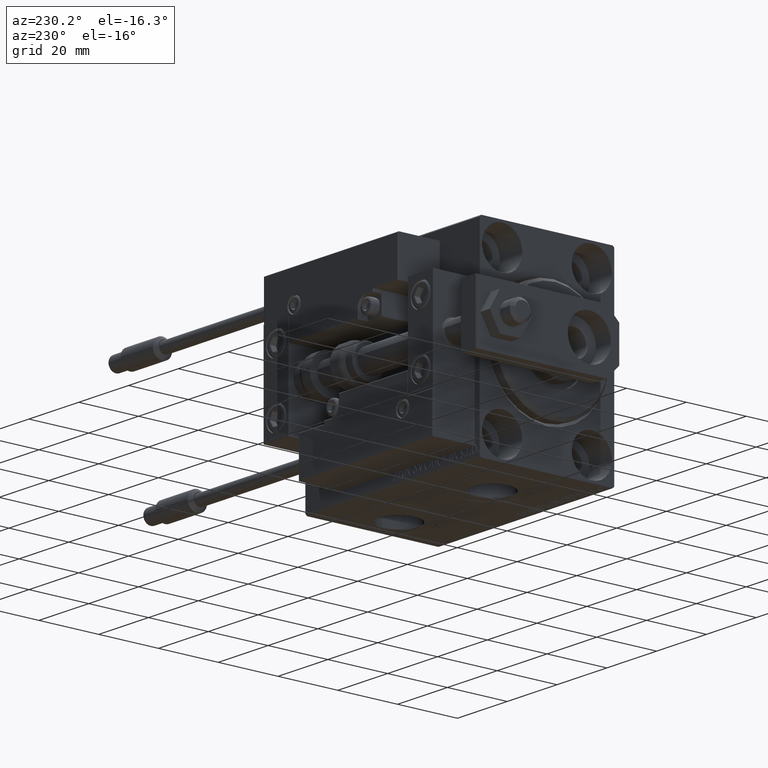
[diagram: clean part render]
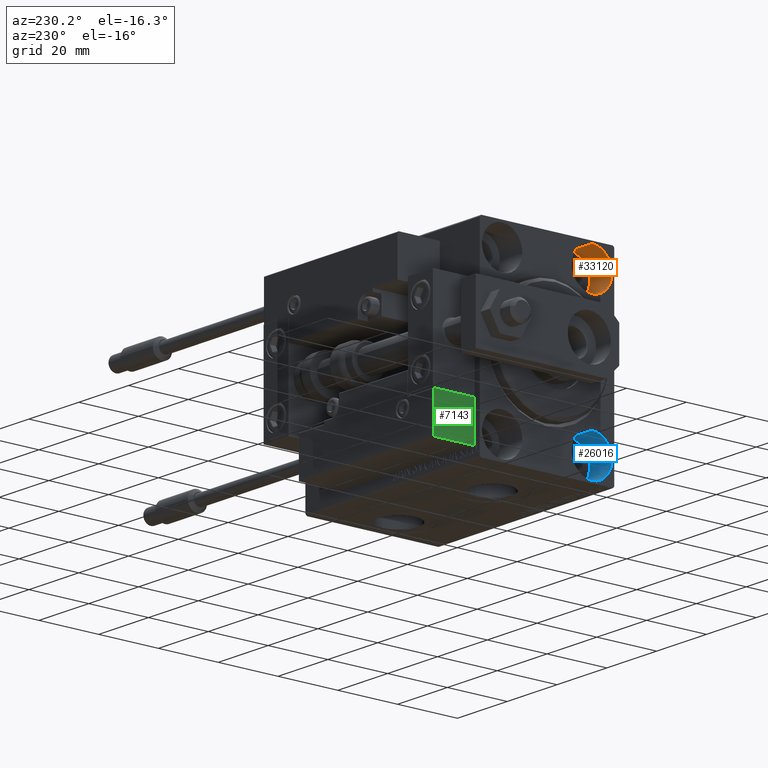
[diagram: same view with three faces highlighted in distinct colors, each labeled with its STEP entity id]
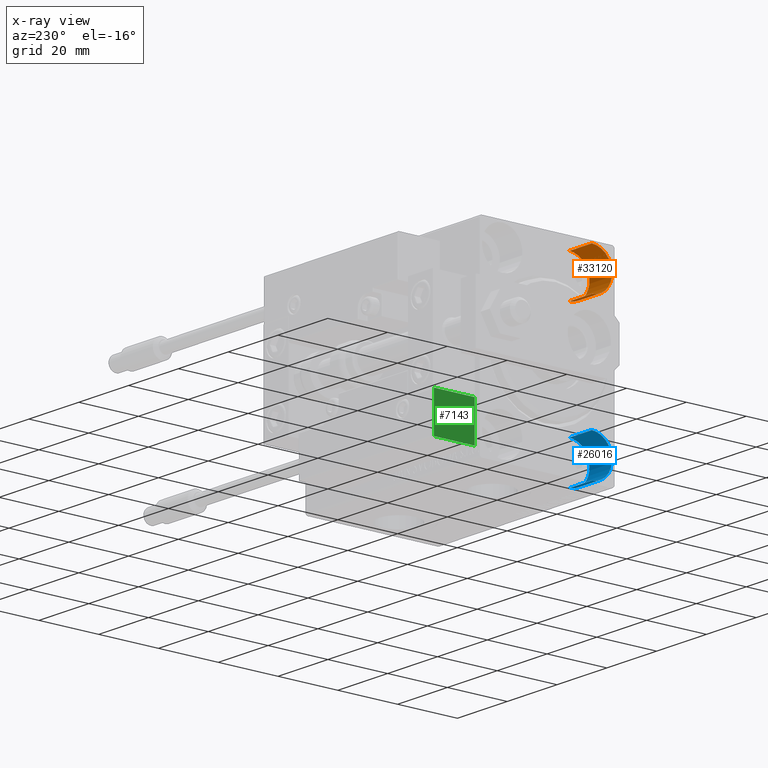
[diagram: x-ray of the same camera — body ghosted, the three highlighted faces saturated]
A machine part, auxiliary view with three faces highlighted in distinct colors.
The next image is the same camera in x-ray (body ghosted, the three faces saturated) — at least one of them is partly hidden behind the body in this view.
Their STEP definitions:

[orange] entity #33120 — the highlighted cylindrical surface (edge-blend (fillet) strip) has radius 6.75 mm, axis along (-1, -0, -0).
#428 = CARTESIAN_POINT ( 'NONE',  ( 9.000000000000000000, -14.99999999999999645, 31.75000000000000000 ) ) ;
#5007 = EDGE_CURVE ( 'NONE', #43966, #9520, #19444, .T. ) ;
#7569 = DIRECTION ( 'NONE',  ( -1.000000000000000000, -0.000000000000000000, -0.000000000000000000 ) ) ;
#7722 = CARTESIAN_POINT ( 'NONE',  ( 0.000000000000000000, -14.99999999999999645, 25.00000000000000000 ) ) ;
#9520 = VERTEX_POINT ( 'NONE', #13276 ) ;
#11219 = EDGE_CURVE ( 'NONE', #46475, #28260, #12850, .T. ) ;
#11916 = DIRECTION ( 'NONE',  ( 0.000000000000000000, 0.000000000000000000, 1.000000000000000000 ) ) ;
#12028 = DIRECTION ( 'NONE',  ( 0.000000000000000000, 0.000000000000000000, 1.000000000000000000 ) ) ;
#12850 = LINE ( 'NONE', #44819, #28832 ) ;
#13276 = CARTESIAN_POINT ( 'NONE',  ( 0.000000000000000000, -14.99999999999999645, 31.75000000000000000 ) ) ;
#15678 = CYLINDRICAL_SURFACE ( 'NONE', #51121, 6.749999999999999112 ) ;
#15764 = CARTESIAN_POINT ( 'NONE',  ( 9.000000000000000000, -14.99999999999999645, 31.75000000000000000 ) ) ;
#18255 = AXIS2_PLACEMENT_3D ( 'NONE', #37893, #33186, #21922 ) ;
#19155 = ORIENTED_EDGE ( 'NONE', *, *, #41990, .T. ) ;
#19444 = LINE ( 'NONE', #15764, #31950 ) ;
#21922 = DIRECTION ( 'NONE',  ( 0.000000000000000000, 0.000000000000000000, 1.000000000000000000 ) ) ;
#23043 = CARTESIAN_POINT ( 'NONE',  ( 9.000000000000000000, -14.99999999999999645, 25.00000000000000000 ) ) ;
#26587 = EDGE_CURVE ( 'NONE', #46475, #43966, #51745, .T. ) ;
#28260 = VERTEX_POINT ( 'NONE', #39391 ) ;
#28832 = VECTOR ( 'NONE', #40886, 1000.000000000000000 ) ;
#31950 = VECTOR ( 'NONE', #47741, 1000.000000000000000 ) ;
#32674 = ORIENTED_EDGE ( 'NONE', *, *, #5007, .F. ) ;
#33120 = ADVANCED_FACE ( 'NONE', ( #47138 ), #15678, .F. ) ;
#33186 = DIRECTION ( 'NONE',  ( -1.000000000000000000, 0.000000000000000000, 0.000000000000000000 ) ) ;
#33749 = ORIENTED_EDGE ( 'NONE', *, *, #11219, .T. ) ;
#37544 = AXIS2_PLACEMENT_3D ( 'NONE', #7722, #43114, #11916 ) ;
#37623 = EDGE_LOOP ( 'NONE', ( #40288, #33749, #19155, #32674 ) ) ;
#37893 = CARTESIAN_POINT ( 'NONE',  ( 9.000000000000000000, -14.99999999999999645, 25.00000000000000000 ) ) ;
#39391 = CARTESIAN_POINT ( 'NONE',  ( 0.000000000000000000, -14.99999999999999645, 18.25000000000000355 ) ) ;
#40288 = ORIENTED_EDGE ( 'NONE', *, *, #26587, .F. ) ;
#40886 = DIRECTION ( 'NONE',  ( -1.000000000000000000, -0.000000000000000000, -0.000000000000000000 ) ) ;
#41990 = EDGE_CURVE ( 'NONE', #28260, #9520, #45122, .T. ) ;
#43114 = DIRECTION ( 'NONE',  ( -1.000000000000000000, 0.000000000000000000, 0.000000000000000000 ) ) ;
#43966 = VERTEX_POINT ( 'NONE', #428 ) ;
#44819 = CARTESIAN_POINT ( 'NONE',  ( 9.000000000000000000, -14.99999999999999645, 18.25000000000000355 ) ) ;
#45122 = CIRCLE ( 'NONE', #37544, 6.749999999999999112 ) ;
#45912 = CARTESIAN_POINT ( 'NONE',  ( 9.000000000000000000, -14.99999999999999645, 18.25000000000000355 ) ) ;
#46475 = VERTEX_POINT ( 'NONE', #45912 ) ;
#47138 = FACE_OUTER_BOUND ( 'NONE', #37623, .T. ) ;
#47741 = DIRECTION ( 'NONE',  ( -1.000000000000000000, -0.000000000000000000, -0.000000000000000000 ) ) ;
#51121 = AXIS2_PLACEMENT_3D ( 'NONE', #23043, #7569, #12028 ) ;
#51745 = CIRCLE ( 'NONE', #18255, 6.749999999999999112 ) ;

[blue] entity #26016 — the highlighted cylindrical surface (edge-blend (fillet) strip) has radius 6.75 mm, axis along (-1, -0, -0).
#1153 = DIRECTION ( 'NONE',  ( -1.000000000000000000, -0.000000000000000000, -0.000000000000000000 ) ) ;
#4644 = DIRECTION ( 'NONE',  ( -1.000000000000000000, -0.000000000000000000, -0.000000000000000000 ) ) ;
#5178 = CARTESIAN_POINT ( 'NONE',  ( 9.000000000000000000, -15.00000000000000355, -18.25000000000000355 ) ) ;
#5677 = VERTEX_POINT ( 'NONE', #19587 ) ;
#6029 = AXIS2_PLACEMENT_3D ( 'NONE', #26957, #38229, #46857 ) ;
#7370 = AXIS2_PLACEMENT_3D ( 'NONE', #21074, #1153, #33117 ) ;
#8772 = VERTEX_POINT ( 'NONE', #23895 ) ;
#9045 = CYLINDRICAL_SURFACE ( 'NONE', #7370, 6.749999999999999112 ) ;
#13250 = ORIENTED_EDGE ( 'NONE', *, *, #37832, .F. ) ;
#14206 = VECTOR ( 'NONE', #4644, 1000.000000000000000 ) ;
#16387 = CARTESIAN_POINT ( 'NONE',  ( 0.000000000000000000, -15.00000000000000355, -31.75000000000000000 ) ) ;
#19587 = CARTESIAN_POINT ( 'NONE',  ( 0.000000000000000000, -15.00000000000000355, -18.25000000000000355 ) ) ;
#20919 = DIRECTION ( 'NONE',  ( -1.000000000000000000, -0.000000000000000000, -0.000000000000000000 ) ) ;
#21027 = VECTOR ( 'NONE', #20919, 1000.000000000000000 ) ;
#21072 = CIRCLE ( 'NONE', #51041, 6.749999999999999112 ) ;
#21074 = CARTESIAN_POINT ( 'NONE',  ( 9.000000000000000000, -15.00000000000000355, -25.00000000000000000 ) ) ;
#22460 = EDGE_LOOP ( 'NONE', ( #13250, #48679, #38864, #44044 ) ) ;
#23895 = CARTESIAN_POINT ( 'NONE',  ( 9.000000000000000000, -15.00000000000000355, -31.75000000000000000 ) ) ;
#25327 = LINE ( 'NONE', #37613, #14206 ) ;
#26016 = ADVANCED_FACE ( 'NONE', ( #37816 ), #9045, .F. ) ;
#26517 = VERTEX_POINT ( 'NONE', #5178 ) ;
#26928 = CIRCLE ( 'NONE', #6029, 6.749999999999999112 ) ;
#26957 = CARTESIAN_POINT ( 'NONE',  ( 9.000000000000000000, -15.00000000000000355, -25.00000000000000000 ) ) ;
#30133 = EDGE_CURVE ( 'NONE', #8772, #36901, #25327, .T. ) ;
#32208 = CARTESIAN_POINT ( 'NONE',  ( 0.000000000000000000, -15.00000000000000355, -25.00000000000000000 ) ) ;
#33117 = DIRECTION ( 'NONE',  ( 0.000000000000000000, 0.000000000000000000, 1.000000000000000000 ) ) ;
#33236 = EDGE_CURVE ( 'NONE', #26517, #5677, #43472, .T. ) ;
#34399 = EDGE_CURVE ( 'NONE', #36901, #5677, #21072, .T. ) ;
#36901 = VERTEX_POINT ( 'NONE', #16387 ) ;
#37613 = CARTESIAN_POINT ( 'NONE',  ( 9.000000000000000000, -15.00000000000000355, -31.75000000000000000 ) ) ;
#37816 = FACE_OUTER_BOUND ( 'NONE', #22460, .T. ) ;
#37832 = EDGE_CURVE ( 'NONE', #8772, #26517, #26928, .T. ) ;
#38229 = DIRECTION ( 'NONE',  ( -1.000000000000000000, 0.000000000000000000, 0.000000000000000000 ) ) ;
#38864 = ORIENTED_EDGE ( 'NONE', *, *, #34399, .T. ) ;
#39541 = CARTESIAN_POINT ( 'NONE',  ( 9.000000000000000000, -15.00000000000000355, -18.25000000000000355 ) ) ;
#43472 = LINE ( 'NONE', #39541, #21027 ) ;
#44044 = ORIENTED_EDGE ( 'NONE', *, *, #33236, .F. ) ;
#44815 = DIRECTION ( 'NONE',  ( -1.000000000000000000, 0.000000000000000000, 0.000000000000000000 ) ) ;
#46857 = DIRECTION ( 'NONE',  ( 0.000000000000000000, 0.000000000000000000, 1.000000000000000000 ) ) ;
#48213 = DIRECTION ( 'NONE',  ( 0.000000000000000000, 0.000000000000000000, 1.000000000000000000 ) ) ;
#48679 = ORIENTED_EDGE ( 'NONE', *, *, #30133, .T. ) ;
#51041 = AXIS2_PLACEMENT_3D ( 'NONE', #32208, #44815, #48213 ) ;

[green] entity #7143 — the highlighted planar face has unit normal (1, 0, -0).
#1233 = LINE ( 'NONE', #1488, #13610 ) ;
#1488 = CARTESIAN_POINT ( 'NONE',  ( -26.99999999999993605, 20.00000000000002132, 13.70000000000000107 ) ) ;
#5097 = VERTEX_POINT ( 'NONE', #23129 ) ;
#7143 = ADVANCED_FACE ( 'NONE', ( #30188 ), #41508, .F. ) ;
#10760 = VECTOR ( 'NONE', #30758, 1000.000000000000000 ) ;
#13042 = DIRECTION ( 'NONE',  ( 8.006416042969869188E-16, 1.000000000000000000, -0.000000000000000000 ) ) ;
#13610 = VECTOR ( 'NONE', #13042, 1000.000000000000000 ) ;
#16327 = ORIENTED_EDGE ( 'NONE', *, *, #40891, .T. ) ;
#17724 = CARTESIAN_POINT ( 'NONE',  ( -26.99999999999993605, 20.00000000000002132, 13.70000000000000107 ) ) ;
#18665 = DIRECTION ( 'NONE',  ( 8.006416042969869188E-16, 1.000000000000000000, 0.000000000000000000 ) ) ;
#18964 = CARTESIAN_POINT ( 'NONE',  ( -26.99999999999993605, 20.00000000000002132, 14.00000000000000000 ) ) ;
#19490 = DIRECTION ( 'NONE',  ( -0.000000000000000000, -0.000000000000000000, -1.000000000000000000 ) ) ;
#19514 = AXIS2_PLACEMENT_3D ( 'NONE', #21833, #50366, #18665 ) ;
#20973 = CARTESIAN_POINT ( 'NONE',  ( -26.99999999999994671, 7.000000000000005329, 13.70000000000000107 ) ) ;
#21833 = CARTESIAN_POINT ( 'NONE',  ( -26.99999999999993605, 20.00000000000002132, 14.00000000000000000 ) ) ;
#22975 = EDGE_LOOP ( 'NONE', ( #41764, #30885, #26946, #16327 ) ) ;
#23129 = CARTESIAN_POINT ( 'NONE',  ( -26.99999999999994671, 7.000000000000005329, 0.000000000000000000 ) ) ;
#23528 = VECTOR ( 'NONE', #19490, 1000.000000000000000 ) ;
#23871 = VERTEX_POINT ( 'NONE', #20973 ) ;
#23941 = LINE ( 'NONE', #18964, #23528 ) ;
#24336 = DIRECTION ( 'NONE',  ( -0.000000000000000000, -0.000000000000000000, -1.000000000000000000 ) ) ;
#26946 = ORIENTED_EDGE ( 'NONE', *, *, #47425, .T. ) ;
#29049 = CARTESIAN_POINT ( 'NONE',  ( -26.99999999999994671, 7.000000000000005329, 14.00000000000000000 ) ) ;
#29749 = CARTESIAN_POINT ( 'NONE',  ( -26.99999999999993605, 20.00000000000002132, 0.000000000000000000 ) ) ;
#30188 = FACE_OUTER_BOUND ( 'NONE', #22975, .T. ) ;
#30758 = DIRECTION ( 'NONE',  ( -8.006416042969869188E-16, -1.000000000000000000, 0.000000000000000000 ) ) ;
#30885 = ORIENTED_EDGE ( 'NONE', *, *, #50019, .T. ) ;
#32746 = VERTEX_POINT ( 'NONE', #51119 ) ;
#32749 = VECTOR ( 'NONE', #24336, 1000.000000000000000 ) ;
#34701 = LINE ( 'NONE', #29749, #10760 ) ;
#36734 = VERTEX_POINT ( 'NONE', #17724 ) ;
#39815 = LINE ( 'NONE', #29049, #32749 ) ;
#40891 = EDGE_CURVE ( 'NONE', #32746, #5097, #34701, .T. ) ;
#41508 = PLANE ( 'NONE',  #19514 ) ;
#41764 = ORIENTED_EDGE ( 'NONE', *, *, #48152, .F. ) ;
#47425 = EDGE_CURVE ( 'NONE', #36734, #32746, #23941, .T. ) ;
#48152 = EDGE_CURVE ( 'NONE', #23871, #5097, #39815, .T. ) ;
#50019 = EDGE_CURVE ( 'NONE', #23871, #36734, #1233, .T. ) ;
#50366 = DIRECTION ( 'NONE',  ( 1.000000000000000000, -8.006416042969869188E-16, 0.000000000000000000 ) ) ;
#51119 = CARTESIAN_POINT ( 'NONE',  ( -26.99999999999993605, 20.00000000000002132, 0.000000000000000000 ) ) ;